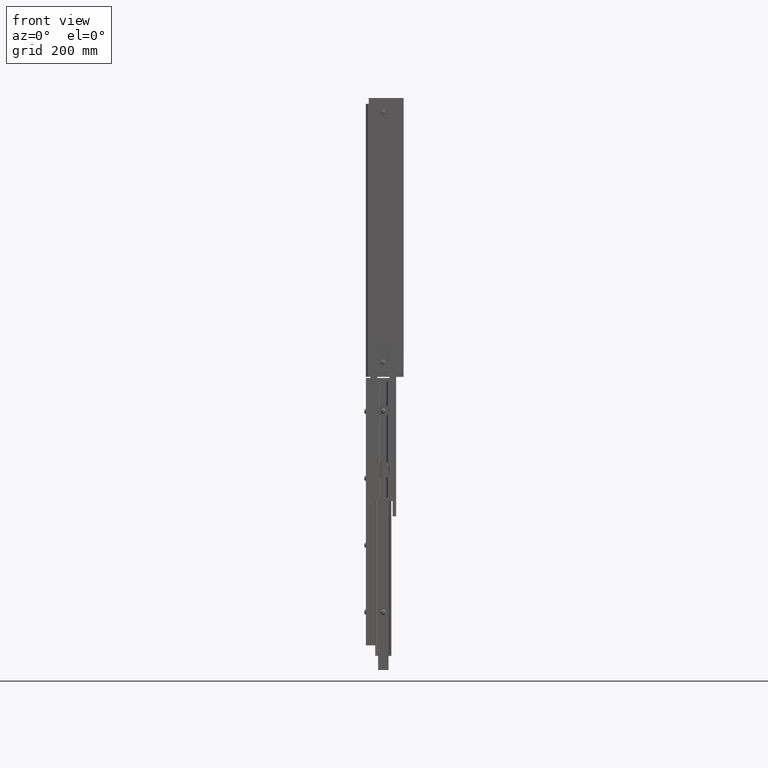
[diagram: clean part render]
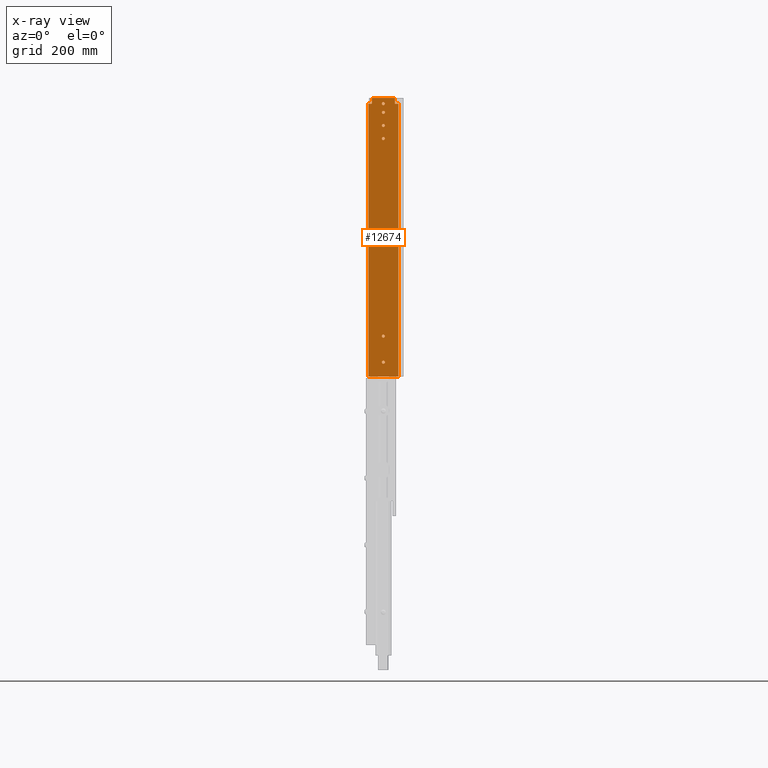
[diagram: x-ray — body ghosted, one internal face saturated and labeled with its STEP entity id]
A machine part, front view, then the same camera in x-ray: the body is ghosted and one INTERNAL B-rep face — a face not visible from any outside direction — is saturated and labeled: STEP entity #12674.
In plain terms, the highlighted planar face has unit normal (0, 1, -0).
Its self-contained STEP definition (entity closure, byte-faithful):
#129 = DIRECTION ( 'NONE',  ( 0.0000000000000000000, 0.0000000000000000000, -1.000000000000000000 ) ) ;
#248 = DIRECTION ( 'NONE',  ( 0.0000000000000000000, 0.0000000000000000000, -1.000000000000000000 ) ) ;
#290 = DIRECTION ( 'NONE',  ( 0.0000000000000000000, 0.0000000000000000000, -1.000000000000000000 ) ) ;
#327 = DIRECTION ( 'NONE',  ( -1.000000000000000000, 0.0000000000000000000, 0.0000000000000000000 ) ) ;
#397 = VECTOR ( 'NONE', #5535, 39.37007874015748100 ) ;
#500 = AXIS2_PLACEMENT_3D ( 'NONE', #12853, #2594, #14546 ) ;
#649 = VECTOR ( 'NONE', #21622, 39.37007874015748100 ) ;
#799 = DIRECTION ( 'NONE',  ( 0.0000000000000000000, -1.000000000000000000, 0.0000000000000000000 ) ) ;
#1055 = CARTESIAN_POINT ( 'NONE',  ( -6.687444860891236700, -0.4459855664539019700, -11.99999999999999800 ) ) ;
#1073 = CARTESIAN_POINT ( 'NONE',  ( -5.388232262466041300, -0.4459855664539019700, -1.377952755905507400 ) ) ;
#1126 = VERTEX_POINT ( 'NONE', #7459 ) ;
#1178 = CARTESIAN_POINT ( 'NONE',  ( -5.388232262466041300, -0.4459855664539019700, -1.118110236220467600 ) ) ;
#1209 = VERTEX_POINT ( 'NONE', #2498 ) ;
#1292 = CARTESIAN_POINT ( 'NONE',  ( -5.388232262466041300, -0.4459855664539019700, -1.248031496062987500 ) ) ;
#1403 = EDGE_CURVE ( 'NONE', #8112, #21508, #21769, .T. ) ;
#1600 = EDGE_CURVE ( 'NONE', #14149, #1209, #5369, .T. ) ;
#1795 = ORIENTED_EDGE ( 'NONE', *, *, #5281, .T. ) ;
#1876 = EDGE_LOOP ( 'NONE', ( #14300, #22016 ) ) ;
#1900 = LINE ( 'NONE', #17411, #19621 ) ;
#2021 = VERTEX_POINT ( 'NONE', #21825 ) ;
#2217 = CARTESIAN_POINT ( 'NONE',  ( -5.388232262466041300, -0.4459855664539019700, -1.248031496062987500 ) ) ;
#2498 = CARTESIAN_POINT ( 'NONE',  ( -6.382326750655015400, -0.4459855664539019700, -0.5118110236220480000 ) ) ;
#2594 = DIRECTION ( 'NONE',  ( -0.0000000000000000000, 1.000000000000000000, -0.0000000000000000000 ) ) ;
#2660 = ORIENTED_EDGE ( 'NONE', *, *, #19450, .F. ) ;
#2927 = FACE_BOUND ( 'NONE', #16080, .T. ) ;
#2958 = VERTEX_POINT ( 'NONE', #14135 ) ;
#2976 = DIRECTION ( 'NONE',  ( 0.0000000000000000000, 0.0000000000000000000, -1.000000000000000000 ) ) ;
#3072 = ORIENTED_EDGE ( 'NONE', *, *, #10458, .T. ) ;
#3301 = VERTEX_POINT ( 'NONE', #1073 ) ;
#3409 = DIRECTION ( 'NONE',  ( 0.0000000000000000000, -1.000000000000000000, 0.0000000000000000000 ) ) ;
#3525 = VERTEX_POINT ( 'NONE', #6840 ) ;
#3597 = VECTOR ( 'NONE', #15067, 39.37007874015748100 ) ;
#3638 = ORIENTED_EDGE ( 'NONE', *, *, #9468, .T. ) ;
#3646 = AXIS2_PLACEMENT_3D ( 'NONE', #16175, #5925, #17923 ) ;
#3792 = CARTESIAN_POINT ( 'NONE',  ( -5.388232262466039500, -0.4459855664539019700, -0.5118110236220470000 ) ) ;
#3811 = VECTOR ( 'NONE', #22004, 39.37007874015748100 ) ;
#3848 = DIRECTION ( 'NONE',  ( 0.0000000000000000000, -1.000000000000000000, 0.0000000000000000000 ) ) ;
#3872 = DIRECTION ( 'NONE',  ( 0.0000000000000000000, -1.000000000000000000, 0.0000000000000000000 ) ) ;
#3922 = DIRECTION ( 'NONE',  ( 0.0000000000000000000, 0.0000000000000000000, -1.000000000000000000 ) ) ;
#3988 = CARTESIAN_POINT ( 'NONE',  ( -4.089019664040843200, -0.4459855664539019700, -23.99999999999999600 ) ) ;
#4039 = AXIS2_PLACEMENT_3D ( 'NONE', #20858, #10580, #290 ) ;
#4090 = DIRECTION ( 'NONE',  ( 0.0000000000000000000, -1.000000000000000000, 0.0000000000000000000 ) ) ;
#4377 = VERTEX_POINT ( 'NONE', #5083 ) ;
#4400 = CARTESIAN_POINT ( 'NONE',  ( -4.394137774277059100, -0.4459855664539019700, -3.205368312566055300E-016 ) ) ;
#4491 = CARTESIAN_POINT ( 'NONE',  ( -5.388232262466039500, -0.4459855664539019700, -24.00000000000000400 ) ) ;
#4493 = EDGE_CURVE ( 'NONE', #6585, #17229, #7472, .T. ) ;
#4646 = CIRCLE ( 'NONE', #12976, 0.1299212598425184800 ) ;
#4649 = VERTEX_POINT ( 'NONE', #12566 ) ;
#4948 = CIRCLE ( 'NONE', #14955, 0.1299212598425195900 ) ;
#4959 = ORIENTED_EDGE ( 'NONE', *, *, #21283, .T. ) ;
#4961 = EDGE_CURVE ( 'NONE', #17229, #6585, #13081, .T. ) ;
#4984 = ORIENTED_EDGE ( 'NONE', *, *, #18855, .F. ) ;
#5083 = CARTESIAN_POINT ( 'NONE',  ( -6.687444860891235800, -0.4459855664539019700, -0.5118110236220470000 ) ) ;
#5109 = ORIENTED_EDGE ( 'NONE', *, *, #10134, .F. ) ;
#5281 = EDGE_CURVE ( 'NONE', #21508, #8112, #21402, .T. ) ;
#5369 = LINE ( 'NONE', #21877, #13696 ) ;
#5535 = DIRECTION ( 'NONE',  ( -1.000000000000000000, 0.0000000000000000000, 0.0000000000000000000 ) ) ;
#5586 = CIRCLE ( 'NONE', #19883, 0.1299212598425198700 ) ;
#5925 = DIRECTION ( 'NONE',  ( 0.0000000000000000000, -1.000000000000000000, 0.0000000000000000000 ) ) ;
#5992 = AXIS2_PLACEMENT_3D ( 'NONE', #14100, #3848, #15839 ) ;
#6144 = CARTESIAN_POINT ( 'NONE',  ( -4.089019664040843200, -0.4459855664539019700, -24.00000000000000400 ) ) ;
#6242 = ORIENTED_EDGE ( 'NONE', *, *, #1403, .T. ) ;
#6317 = LINE ( 'NONE', #1055, #14864 ) ;
#6349 = ORIENTED_EDGE ( 'NONE', *, *, #7779, .T. ) ;
#6585 = VERTEX_POINT ( 'NONE', #17715 ) ;
#6624 = DIRECTION ( 'NONE',  ( 0.0000000000000000000, -1.000000000000000000, 0.0000000000000000000 ) ) ;
#6840 = CARTESIAN_POINT ( 'NONE',  ( -5.388232262466039500, -0.4459855664539019700, -3.629921259842519000 ) ) ;
#6897 = EDGE_CURVE ( 'NONE', #12685, #14149, #7647, .T. ) ;
#6918 = VECTOR ( 'NONE', #11989, 39.37007874015748100 ) ;
#6973 = FACE_OUTER_BOUND ( 'NONE', #10286, .T. ) ;
#7212 = AXIS2_PLACEMENT_3D ( 'NONE', #13668, #3409, #15396 ) ;
#7230 = EDGE_LOOP ( 'NONE', ( #18652, #4959 ) ) ;
#7351 = CIRCLE ( 'NONE', #3646, 0.1299212598425195900 ) ;
#7440 = LINE ( 'NONE', #10256, #6918 ) ;
#7459 = CARTESIAN_POINT ( 'NONE',  ( -5.388232262466039500, -0.4459855664539019700, -3.370078740157479700 ) ) ;
#7472 = CIRCLE ( 'NONE', #8255, 0.1299212598425228700 ) ;
#7494 = FACE_BOUND ( 'NONE', #13159, .T. ) ;
#7647 = LINE ( 'NONE', #9937, #3597 ) ;
#7710 = CIRCLE ( 'NONE', #9251, 0.1299212598425198700 ) ;
#7779 = EDGE_CURVE ( 'NONE', #20773, #12685, #7440, .T. ) ;
#7877 = DIRECTION ( 'NONE',  ( 0.0000000000000000000, 0.0000000000000000000, 1.000000000000000000 ) ) ;
#8083 = VERTEX_POINT ( 'NONE', #3988 ) ;
#8112 = VERTEX_POINT ( 'NONE', #11005 ) ;
#8120 = AXIS2_PLACEMENT_3D ( 'NONE', #20811, #10531, #248 ) ;
#8255 = AXIS2_PLACEMENT_3D ( 'NONE', #8766, #20776, #10495 ) ;
#8766 = CARTESIAN_POINT ( 'NONE',  ( -5.388232262466041300, -0.4459855664539019700, -20.50000000000000400 ) ) ;
#8810 = CIRCLE ( 'NONE', #11331, 0.1299212598425228700 ) ;
#9088 = CARTESIAN_POINT ( 'NONE',  ( -5.388232262466041300, -0.4459855664539019700, -20.62992125984252600 ) ) ;
#9251 = AXIS2_PLACEMENT_3D ( 'NONE', #1292, #13246, #2976 ) ;
#9468 = EDGE_CURVE ( 'NONE', #4377, #2021, #6317, .T. ) ;
#9526 = LINE ( 'NONE', #3792, #397 ) ;
#9937 = CARTESIAN_POINT ( 'NONE',  ( -5.388232262466039500, -0.4459855664539019700, 1.136448765364334800E-015 ) ) ;
#10134 = EDGE_CURVE ( 'NONE', #13652, #19691, #4646, .T. ) ;
#10256 = CARTESIAN_POINT ( 'NONE',  ( -4.394137774277060000, -0.4459855664539019700, -11.99999999999999800 ) ) ;
#10286 = EDGE_LOOP ( 'NONE', ( #15334, #3072, #19310, #6349, #20790, #20529, #10551, #3638 ) ) ;
#10415 = DIRECTION ( 'NONE',  ( 0.0000000000000000000, -1.000000000000000000, 0.0000000000000000000 ) ) ;
#10458 = EDGE_CURVE ( 'NONE', #8083, #19203, #22093, .T. ) ;
#10495 = DIRECTION ( 'NONE',  ( 0.0000000000000000000, 0.0000000000000000000, -1.000000000000000000 ) ) ;
#10531 = DIRECTION ( 'NONE',  ( -0.0000000000000000000, 1.000000000000000000, -0.0000000000000000000 ) ) ;
#10551 = ORIENTED_EDGE ( 'NONE', *, *, #11719, .T. ) ;
#10580 = DIRECTION ( 'NONE',  ( -0.0000000000000000000, 1.000000000000000000, -0.0000000000000000000 ) ) ;
#10633 = CARTESIAN_POINT ( 'NONE',  ( -5.388232262466039500, -0.4459855664539019700, -0.6279527559055072500 ) ) ;
#10808 = EDGE_CURVE ( 'NONE', #1126, #3525, #7351, .T. ) ;
#10977 = EDGE_CURVE ( 'NONE', #2021, #8083, #21050, .T. ) ;
#11005 = CARTESIAN_POINT ( 'NONE',  ( -5.388232262466041300, -0.4459855664539019700, -2.244094488188975500 ) ) ;
#11073 = CARTESIAN_POINT ( 'NONE',  ( -5.388232262466041300, -0.4459855664539019700, -22.74803149606299300 ) ) ;
#11331 = AXIS2_PLACEMENT_3D ( 'NONE', #16875, #6624, #18605 ) ;
#11544 = FACE_BOUND ( 'NONE', #18257, .T. ) ;
#11553 = CARTESIAN_POINT ( 'NONE',  ( -4.089019664040843200, -0.4459855664539019700, -0.5118110236220475600 ) ) ;
#11719 = EDGE_CURVE ( 'NONE', #1209, #4377, #1900, .T. ) ;
#11822 = AXIS2_PLACEMENT_3D ( 'NONE', #20686, #10415, #129 ) ;
#11989 = DIRECTION ( 'NONE',  ( 0.0000000000000000000, 0.0000000000000000000, 1.000000000000000000 ) ) ;
#12061 = FACE_BOUND ( 'NONE', #1876, .T. ) ;
#12557 = CARTESIAN_POINT ( 'NONE',  ( -5.388232262466041300, -0.4459855664539019700, -22.87795275590551100 ) ) ;
#12566 = CARTESIAN_POINT ( 'NONE',  ( -5.388232262466041300, -0.4459855664539019700, -12.43110236220471900 ) ) ;
#12581 = FACE_BOUND ( 'NONE', #14059, .T. ) ;
#12674 = ADVANCED_FACE ( 'NONE', ( #12581, #12061, #2927, #20660, #7494, #16049, #11544, #6973 ), #14666, .T. ) ;
#12685 = VERTEX_POINT ( 'NONE', #4400 ) ;
#12771 = DIRECTION ( 'NONE',  ( 0.0000000000000000000, 0.0000000000000000000, -1.000000000000000000 ) ) ;
#12853 = CARTESIAN_POINT ( 'NONE',  ( -5.388232262466041300, -0.4459855664539019700, -20.50000000000000400 ) ) ;
#12976 = AXIS2_PLACEMENT_3D ( 'NONE', #11073, #799, #12771 ) ;
#13081 = CIRCLE ( 'NONE', #500, 0.1299212598425228700 ) ;
#13142 = EDGE_CURVE ( 'NONE', #14520, #19565, #15331, .T. ) ;
#13159 = EDGE_LOOP ( 'NONE', ( #1795, #6242 ) ) ;
#13246 = DIRECTION ( 'NONE',  ( -0.0000000000000000000, 1.000000000000000000, -0.0000000000000000000 ) ) ;
#13378 = CIRCLE ( 'NONE', #11822, 0.1299212598425184800 ) ;
#13444 = EDGE_CURVE ( 'NONE', #4649, #2958, #8810, .T. ) ;
#13488 = CARTESIAN_POINT ( 'NONE',  ( -4.089019664040843200, -0.4459855664539019700, -11.99999999999999800 ) ) ;
#13652 = VERTEX_POINT ( 'NONE', #20784 ) ;
#13668 = CARTESIAN_POINT ( 'NONE',  ( -5.388232262466039500, -0.4459855664539019700, -0.4980314960629874100 ) ) ;
#13696 = VECTOR ( 'NONE', #18433, 39.37007874015748100 ) ;
#13704 = AXIS2_PLACEMENT_3D ( 'NONE', #6144, #18159, #7877 ) ;
#13758 = CARTESIAN_POINT ( 'NONE',  ( -4.394137774277059100, -0.4459855664539019700, -0.5118110236220487800 ) ) ;
#14029 = ORIENTED_EDGE ( 'NONE', *, *, #4961, .T. ) ;
#14059 = EDGE_LOOP ( 'NONE', ( #20959, #18060 ) ) ;
#14100 = CARTESIAN_POINT ( 'NONE',  ( -5.388232262466039500, -0.4459855664539019700, -0.4980314960629874100 ) ) ;
#14120 = CARTESIAN_POINT ( 'NONE',  ( -5.388232262466039500, -0.4459855664539019700, -3.499999999999999100 ) ) ;
#14135 = CARTESIAN_POINT ( 'NONE',  ( -5.388232262466041300, -0.4459855664539019700, -12.69094488188976500 ) ) ;
#14149 = VERTEX_POINT ( 'NONE', #20333 ) ;
#14170 = DIRECTION ( 'NONE',  ( -0.0000000000000000000, 1.000000000000000000, -0.0000000000000000000 ) ) ;
#14290 = ORIENTED_EDGE ( 'NONE', *, *, #10808, .F. ) ;
#14300 = ORIENTED_EDGE ( 'NONE', *, *, #19409, .F. ) ;
#14353 = CARTESIAN_POINT ( 'NONE',  ( -5.388232262466041300, -0.4459855664539019700, -12.56102362204724300 ) ) ;
#14520 = VERTEX_POINT ( 'NONE', #15992 ) ;
#14546 = DIRECTION ( 'NONE',  ( 0.0000000000000000000, 0.0000000000000000000, -1.000000000000000000 ) ) ;
#14666 = PLANE ( 'NONE',  #13704 ) ;
#14864 = VECTOR ( 'NONE', #16478, 39.37007874015748100 ) ;
#14955 = AXIS2_PLACEMENT_3D ( 'NONE', #14120, #3872, #15858 ) ;
#15067 = DIRECTION ( 'NONE',  ( -1.000000000000000000, 0.0000000000000000000, 0.0000000000000000000 ) ) ;
#15331 = CIRCLE ( 'NONE', #5992, 0.1299212598425198700 ) ;
#15334 = ORIENTED_EDGE ( 'NONE', *, *, #10977, .T. ) ;
#15396 = DIRECTION ( 'NONE',  ( 0.0000000000000000000, 0.0000000000000000000, -1.000000000000000000 ) ) ;
#15839 = DIRECTION ( 'NONE',  ( 0.0000000000000000000, 0.0000000000000000000, -1.000000000000000000 ) ) ;
#15858 = DIRECTION ( 'NONE',  ( 0.0000000000000000000, 0.0000000000000000000, -1.000000000000000000 ) ) ;
#15992 = CARTESIAN_POINT ( 'NONE',  ( -5.388232262466039500, -0.4459855664539019700, -0.3681102362204675700 ) ) ;
#16049 = FACE_BOUND ( 'NONE', #7230, .T. ) ;
#16080 = EDGE_LOOP ( 'NONE', ( #4984, #14290 ) ) ;
#16082 = DIRECTION ( 'NONE',  ( 0.0000000000000000000, 0.0000000000000000000, -1.000000000000000000 ) ) ;
#16175 = CARTESIAN_POINT ( 'NONE',  ( -5.388232262466039500, -0.4459855664539019700, -3.499999999999999100 ) ) ;
#16478 = DIRECTION ( 'NONE',  ( -0.0000000000000000000, -0.0000000000000000000, -1.000000000000000000 ) ) ;
#16875 = CARTESIAN_POINT ( 'NONE',  ( -5.388232262466041300, -0.4459855664539019700, -12.56102362204724300 ) ) ;
#17229 = VERTEX_POINT ( 'NONE', #9088 ) ;
#17411 = CARTESIAN_POINT ( 'NONE',  ( -5.388232262466039500, -0.4459855664539019700, -0.5118110236220470000 ) ) ;
#17715 = CARTESIAN_POINT ( 'NONE',  ( -5.388232262466041300, -0.4459855664539019700, -20.37007874015748100 ) ) ;
#17923 = DIRECTION ( 'NONE',  ( 0.0000000000000000000, 0.0000000000000000000, -1.000000000000000000 ) ) ;
#17955 = CIRCLE ( 'NONE', #7212, 0.1299212598425198700 ) ;
#18060 = ORIENTED_EDGE ( 'NONE', *, *, #13444, .F. ) ;
#18159 = DIRECTION ( 'NONE',  ( 0.0000000000000000000, -1.000000000000000000, 0.0000000000000000000 ) ) ;
#18257 = EDGE_LOOP ( 'NONE', ( #2660, #5109 ) ) ;
#18433 = DIRECTION ( 'NONE',  ( -0.0000000000000000000, -0.0000000000000000000, -1.000000000000000000 ) ) ;
#18531 = EDGE_LOOP ( 'NONE', ( #14029, #21824 ) ) ;
#18605 = DIRECTION ( 'NONE',  ( 0.0000000000000000000, 0.0000000000000000000, -1.000000000000000000 ) ) ;
#18652 = ORIENTED_EDGE ( 'NONE', *, *, #19664, .T. ) ;
#18832 = EDGE_CURVE ( 'NONE', #19203, #20773, #9526, .T. ) ;
#18855 = EDGE_CURVE ( 'NONE', #3525, #1126, #4948, .T. ) ;
#18873 = AXIS2_PLACEMENT_3D ( 'NONE', #14353, #4090, #16082 ) ;
#19203 = VERTEX_POINT ( 'NONE', #11553 ) ;
#19310 = ORIENTED_EDGE ( 'NONE', *, *, #18832, .T. ) ;
#19409 = EDGE_CURVE ( 'NONE', #19565, #14520, #17955, .T. ) ;
#19450 = EDGE_CURVE ( 'NONE', #19691, #13652, #13378, .T. ) ;
#19565 = VERTEX_POINT ( 'NONE', #10633 ) ;
#19621 = VECTOR ( 'NONE', #327, 39.37007874015748100 ) ;
#19664 = EDGE_CURVE ( 'NONE', #3301, #19972, #5586, .T. ) ;
#19691 = VERTEX_POINT ( 'NONE', #12557 ) ;
#19883 = AXIS2_PLACEMENT_3D ( 'NONE', #2217, #14170, #3922 ) ;
#19972 = VERTEX_POINT ( 'NONE', #1178 ) ;
#20333 = CARTESIAN_POINT ( 'NONE',  ( -6.382326750655015400, -0.4459855664539019700, -1.049029629567075800E-015 ) ) ;
#20529 = ORIENTED_EDGE ( 'NONE', *, *, #1600, .T. ) ;
#20603 = CIRCLE ( 'NONE', #18873, 0.1299212598425228700 ) ;
#20660 = FACE_BOUND ( 'NONE', #18531, .T. ) ;
#20686 = CARTESIAN_POINT ( 'NONE',  ( -5.388232262466041300, -0.4459855664539019700, -22.74803149606299300 ) ) ;
#20773 = VERTEX_POINT ( 'NONE', #13758 ) ;
#20776 = DIRECTION ( 'NONE',  ( -0.0000000000000000000, 1.000000000000000000, -0.0000000000000000000 ) ) ;
#20784 = CARTESIAN_POINT ( 'NONE',  ( -5.388232262466041300, -0.4459855664539019700, -22.61811023622047400 ) ) ;
#20790 = ORIENTED_EDGE ( 'NONE', *, *, #6897, .T. ) ;
#20811 = CARTESIAN_POINT ( 'NONE',  ( -5.388232262466041300, -0.4459855664539019700, -2.374015748031495400 ) ) ;
#20858 = CARTESIAN_POINT ( 'NONE',  ( -5.388232262466041300, -0.4459855664539019700, -2.374015748031495400 ) ) ;
#20959 = ORIENTED_EDGE ( 'NONE', *, *, #21011, .F. ) ;
#21011 = EDGE_CURVE ( 'NONE', #2958, #4649, #20603, .T. ) ;
#21050 = LINE ( 'NONE', #4491, #649 ) ;
#21283 = EDGE_CURVE ( 'NONE', #19972, #3301, #7710, .T. ) ;
#21402 = CIRCLE ( 'NONE', #8120, 0.1299212598425195900 ) ;
#21508 = VERTEX_POINT ( 'NONE', #21673 ) ;
#21622 = DIRECTION ( 'NONE',  ( 1.000000000000000000, -0.0000000000000000000, -0.0000000000000000000 ) ) ;
#21673 = CARTESIAN_POINT ( 'NONE',  ( -5.388232262466041300, -0.4459855664539019700, -2.503937007874014900 ) ) ;
#21769 = CIRCLE ( 'NONE', #4039, 0.1299212598425195900 ) ;
#21824 = ORIENTED_EDGE ( 'NONE', *, *, #4493, .T. ) ;
#21825 = CARTESIAN_POINT ( 'NONE',  ( -6.687444860891236700, -0.4459855664539019700, -23.99999999999999600 ) ) ;
#21877 = CARTESIAN_POINT ( 'NONE',  ( -6.382326750655015400, -0.4459855664539019700, -11.99999999999999800 ) ) ;
#22004 = DIRECTION ( 'NONE',  ( 0.0000000000000000000, 0.0000000000000000000, 1.000000000000000000 ) ) ;
#22016 = ORIENTED_EDGE ( 'NONE', *, *, #13142, .F. ) ;
#22093 = LINE ( 'NONE', #13488, #3811 ) ;